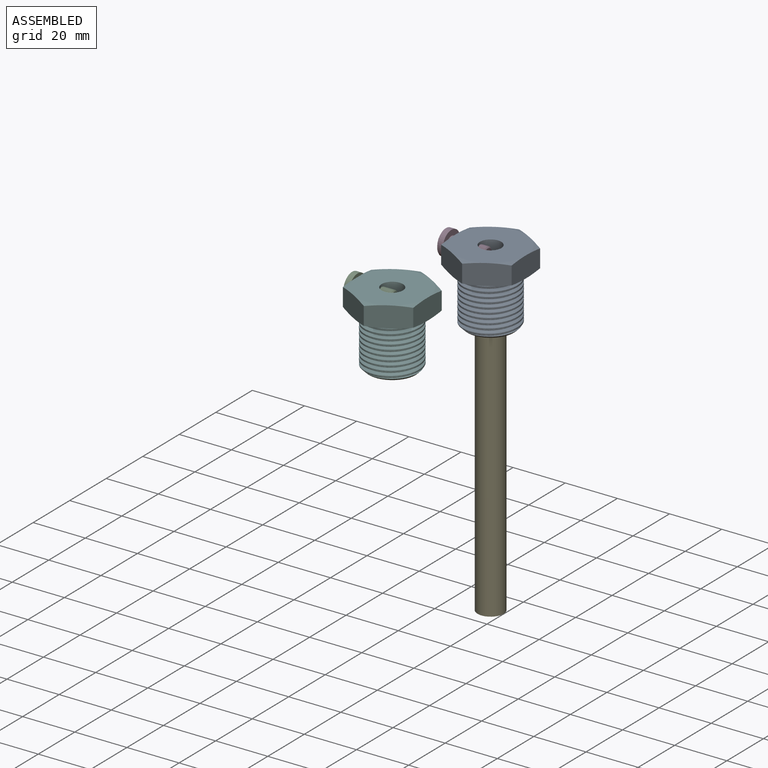
[diagram: assembled view]
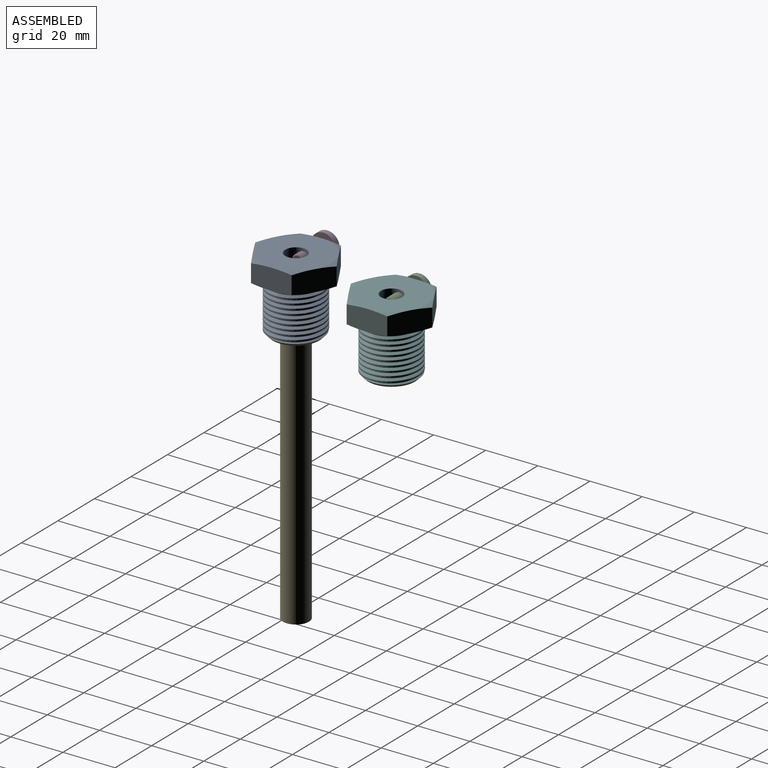
[diagram: assembled view, second angle]
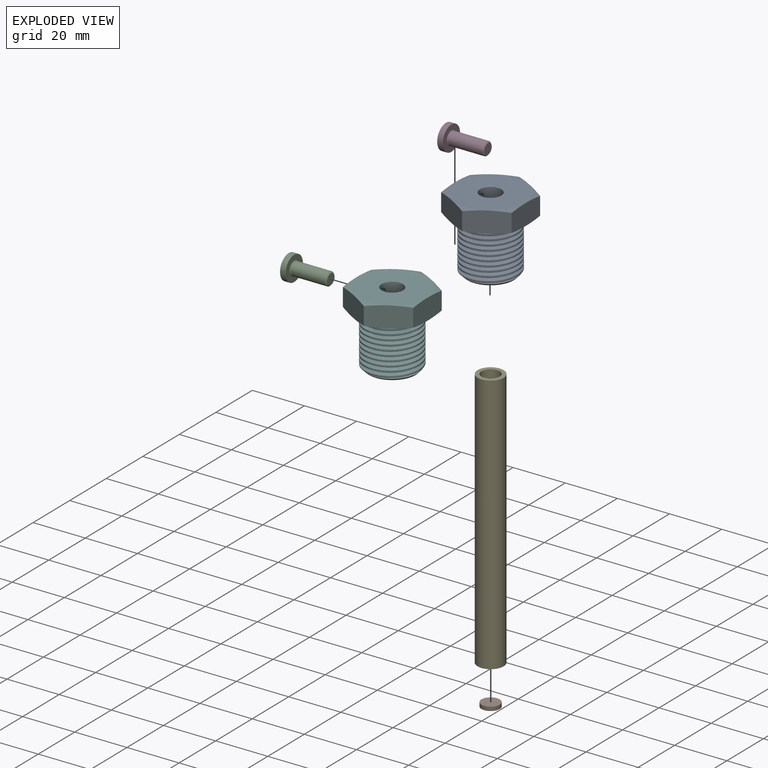
[diagram: exploded view]
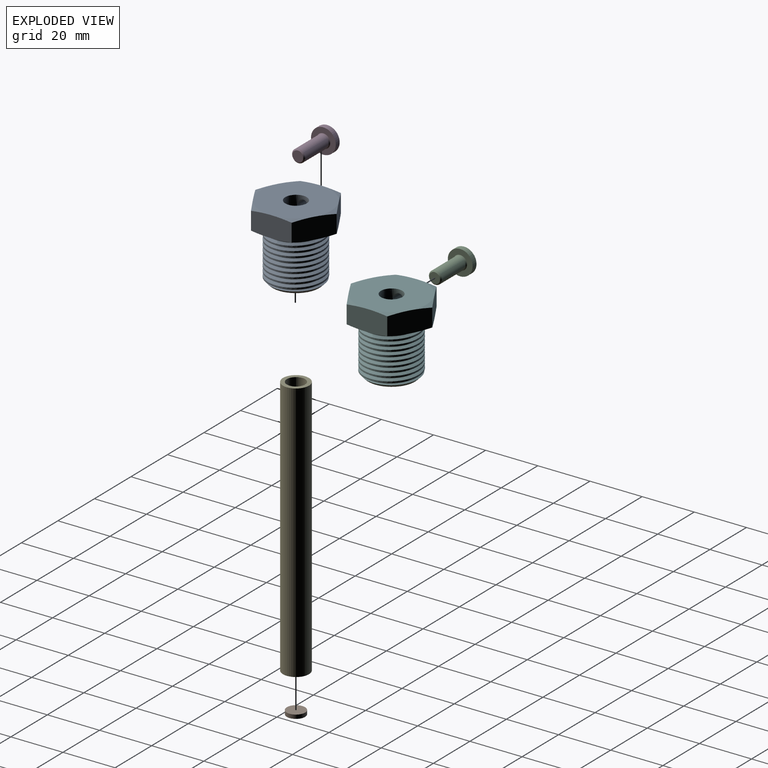
[diagram: exploded view, second angle]
ASSEMBLY  parts=6 mates=4
PART A: 32 faces, bbox 32.3x32.3x29.5 mm
  f0: cylinder r=4.1mm len=8.2mm, axis (0,0,-1), area 193mm2, adj f1,f2,f31
  f1: plane 10.1x10.1mm, normal (0,0,-1), area 27.3mm2, adj f0,f22
  f2: plane 27x27mm, normal (0,0,1), area 519.7mm2, adj f0,f6,f7,f9,f11,f13,f15
  f3: plane 27x27mm, normal (0,0,-1), area 227.7mm2, adj f4,f5,f8,f10,f12,f14,f23
  f4: cone r=20.49mm half-angle=75deg, axis (0,0,1), area 16.1mm2, adj f3,f16,f21
  f5: cone r=20.49mm half-angle=75deg, axis (0,0,1), area 16.1mm2, adj f3,f16,f17
  f6: cone r=20.49mm half-angle=75deg, axis (0,0,-1), area 16.1mm2, adj f2,f16,f21
  f7: cone r=20.49mm half-angle=75deg, axis (0,0,-1), area 16.1mm2, adj f2,f16,f17
  f8: cone r=20.49mm half-angle=75deg, axis (0,0,1), area 16.1mm2, adj f3,f17,f18
  f9: cone r=20.49mm half-angle=75deg, axis (0,0,-1), area 16.1mm2, adj f2,f17,f18
  f10: cone r=20.49mm half-angle=75deg, axis (0,0,1), area 16.1mm2, adj f3,f18,f19
  f11: cone r=20.49mm half-angle=75deg, axis (0,0,-1), area 16.1mm2, adj f2,f18,f19
  f12: cone r=20.49mm half-angle=75deg, axis (0,0,1), area 16.1mm2, adj f3,f19,f20
  f13: cone r=20.49mm half-angle=75deg, axis (0,0,-1), area 16.1mm2, adj f2,f19,f20
  f14: cone r=20.49mm half-angle=75deg, axis (0,0,1), area 16.1mm2, adj f3,f20,f21
  f15: cone r=20.49mm half-angle=75deg, axis (0,0,-1), area 16.1mm2, adj f2,f20,f21
  f16: plane 16.75x9.16mm, normal (1,0,0), area 118.7mm2, adj f4,f5,f6,f7,f17,f21
  f17: plane 14.66x9.16mm, normal (0.5,-0.87,0), area 118.7mm2, adj f5,f7,f8,f9,f16,f18
  f18: plane 14.66x9.16mm, normal (-0.5,-0.87,0), area 118.7mm2, adj f8,f9,f10,f11,f17,f19
  f19: plane 16.75x9.16mm, normal (-1,0,0), area 104.9mm2, adj f10,f11,f12,f13,f18,f20,f31
  f20: plane 14.66x9.16mm, normal (-0.5,0.87,0), area 118.7mm2, adj f12,f13,f14,f15,f19,f21
  f21: plane 14.66x9.16mm, normal (0.5,0.87,0), area 118.7mm2, adj f4,f6,f14,f15,f16,f20
  f22: cylinder r=5.05mm len=18.5mm, axis (0,0,1), area 587mm2, adj f1,f25
  f23: cylinder r=10.48mm len=20.96mm, axis (0,0,1), area 439.3mm2, adj f3,f26,f27,f28,f30
  f24: plane 17.96x17.96mm, normal (0,0,-1), area 118.4mm2, adj f25,f26
  f25: cone r=6.55mm half-angle=45deg, axis (0,0,-1), area 77.3mm2, adj f22,f24
  f26: cone r=10.48mm half-angle=45deg, axis (0,0,1), area 95.3mm2, adj f23,f24,f28,f29,f30
  f27: plane 1.22x1.05mm, normal (0.16,-0.99,0), area 0.7mm2, adj f23,f28,f29,f30
  f28: bspline ~24.2x20.96mm, area 705.4mm2, adj f23,f26,f27,f29
  f29: bspline ~21.91x19.53mm, area 135.8mm2, adj f26,f27,f28,f30
  f30: bspline ~24.2x20.96mm, area 711.4mm2, adj f23,f26,f27,f29
  f31: cylinder r=2.1mm len=9.98mm, axis (-1,0,0), area 127.8mm2, adj f0,f19
PART B: 3 faces, bbox 7x7x1.5 mm
  f0: cylinder r=3.5mm len=7mm, axis (0,0,-1), area 33mm2, adj f1,f2
  f1: plane 7x7mm, normal (0,0,1), area 38.5mm2, adj f0
  f2: plane 7x7mm, normal (0,0,-1), area 38.5mm2, adj f0
PART C: 23 faces, bbox 9.6x9.6x17.7 mm
  f0: cone r=2.28mm half-angle=45deg, axis (0,0,-1), area 8.8mm2, adj f1,f22
  f1: cylinder r=2.5mm len=12.92mm, axis (0,0,1), area 203mm2, adj f0,f21
  f2: cone r=2.28mm half-angle=45deg, axis (0,0,-1), area 8.8mm2, adj f3,f21
  f3: cylinder r=2.5mm len=5mm, axis (0,0,1), area 0.2mm2, adj f2,f4
  f4: torus R=2.7mm, axis (0,0,1), area 5.1mm2, adj f3,f20
  f5: cylinder r=4.75mm len=9.5mm, axis (0,0,1), area 63.8mm2, adj f6,f20
  f6: sphere r=8mm, area 66.8mm2, adj f5,f7,f8,f9,f10,f11,f12,f13
  f7: plane 2.28x1.79mm, normal (-0.88,-0.41,-0.26), area 3.2mm2, adj f6,f8,f9,f14,f19
  f8: plane 2.04x0.69mm, normal (0,-0.97,-0.26), area 0.7mm2, adj f6,f7,f9
  f9: plane 2.28x1.79mm, normal (0.88,-0.41,-0.26), area 3.2mm2, adj f6,f7,f8,f10,f19
  f10: plane 2.29x1.8mm, normal (0.41,-0.88,-0.26), area 3.2mm2, adj f6,f9,f11,f12,f19
  f11: plane 2.04x0.7mm, normal (0.97,0,-0.26), area 0.7mm2, adj f6,f10,f12
  f12: plane 2.29x1.8mm, normal (0.41,0.88,-0.26), area 3.2mm2, adj f6,f10,f11,f13,f19
  f13: plane 2.28x1.79mm, normal (0.88,0.41,-0.26), area 3.2mm2, adj f6,f12,f17,f18,f19
  f14: plane 2.29x1.8mm, normal (-0.41,-0.88,-0.26), area 3.2mm2, adj f6,f7,f15,f16,f19
  f15: plane 2.04x0.7mm, normal (-0.97,0,-0.26), area 0.7mm2, adj f6,f14,f16
  f16: plane 2.29x1.8mm, normal (-0.41,0.88,-0.26), area 3.2mm2, adj f6,f14,f15,f17,f19
  f17: plane 2.28x1.79mm, normal (-0.88,0.41,-0.26), area 3.2mm2, adj f6,f13,f16,f18,f19
  f18: plane 2.04x0.69mm, normal (0,0.97,-0.26), area 0.7mm2, adj f6,f13,f17
  f19: plane 3.61x3.61mm, normal (0,0,-1), area 4.1mm2, adj f7,f9,f10,f12,f13,f14,f16,f17
  f20: plane 9.5x9.5mm, normal (0,0,1), area 48mm2, adj f4,f5
  f21: plane 5x5mm, normal (0,0,-1), area 6.2mm2, adj f1,f2
  f22: plane 4.13x4.13mm, normal (0,0,1), area 13.4mm2, adj f0
PART D: same geometry as C
PART E: 4 faces, bbox 10x10x100 mm
  f0: cylinder r=3.5mm len=100mm, axis (0,0,1), area 2199.1mm2, adj f2,f3
  f1: cylinder r=5mm len=100mm, axis (0,0,1), area 3141.6mm2, adj f2,f3
  f2: plane 10x10mm, normal (0,0,-1), area 40.1mm2, adj f0,f1
  f3: plane 10x10mm, normal (0,0,1), area 40.1mm2, adj f0,f1
PART F: same geometry as A
PLACE A t=(-1.14,6.54,27.02)mm
PLACE B t=(-1.14,6.54,-91.48)mm
PLACE C rot(axis=(0,1,0),90deg) t=(-60.65,13.42,2.85)mm
PLACE D rot(axis=(0,1,0),90deg) t=(-19.87,6.54,31.52)mm
PLACE E t=(-1.14,6.54,8.52)mm
PLACE F t=(-43.67,13.42,-1.65)mm
MATE cylindrical C.f4 <-> F.f31  axis (1,0,0) through (-56.3,13.42,2.85)mm
MATE fastened E.f1 <-> A.f22  axis (0,0,1) through (-1.14,6.54,8.52)mm
MATE cylindrical D.f4 <-> A.f31  axis (1,0,0) through (-9.06,6.54,31.52)mm
MATE fastened B.f0 <-> E.f0  axis (0,0,-1) through (-1.14,6.54,-91.48)mm
